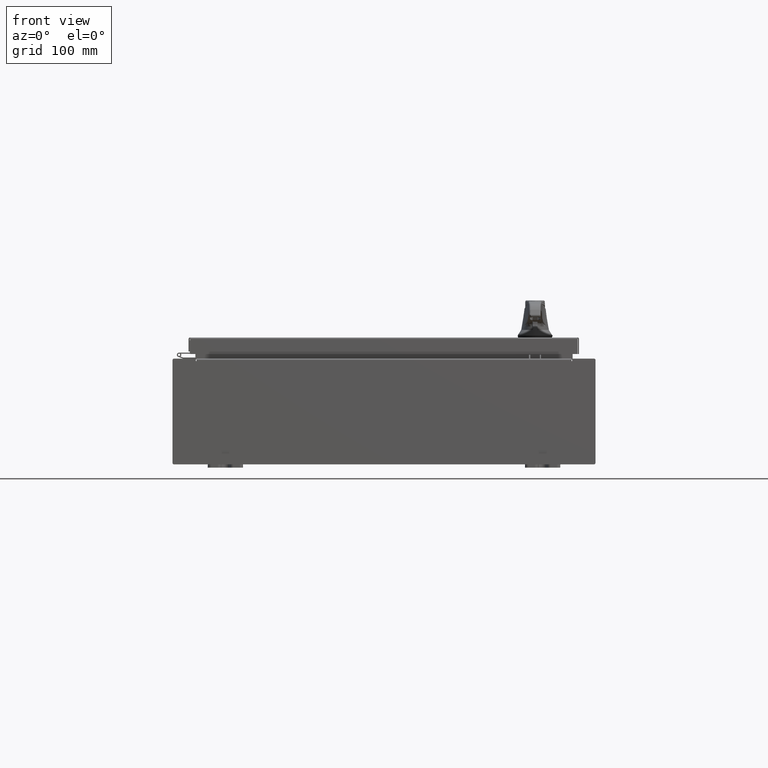
[diagram: clean part render]
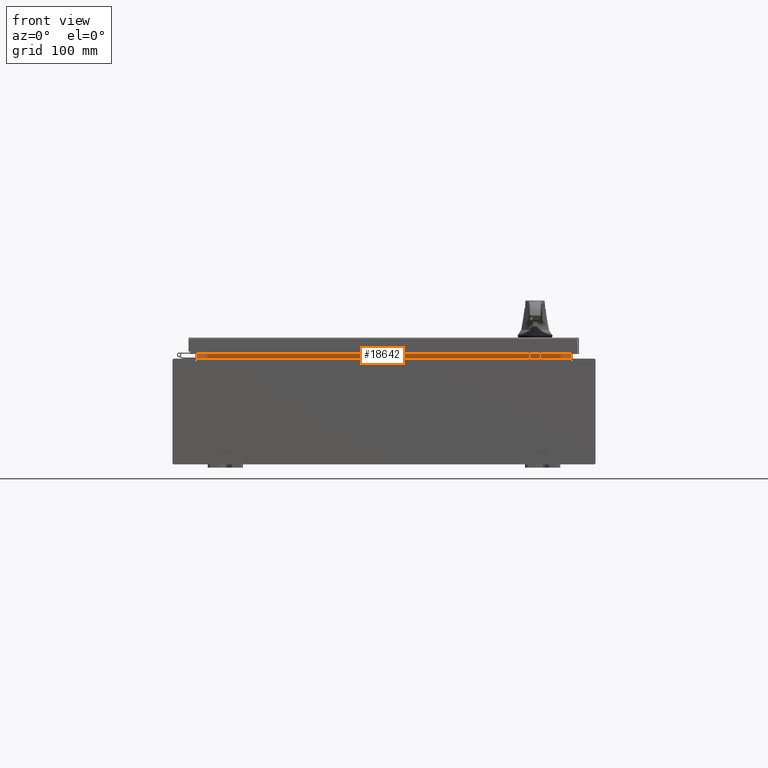
[diagram: same view with one face highlighted and labeled with its STEP entity id]
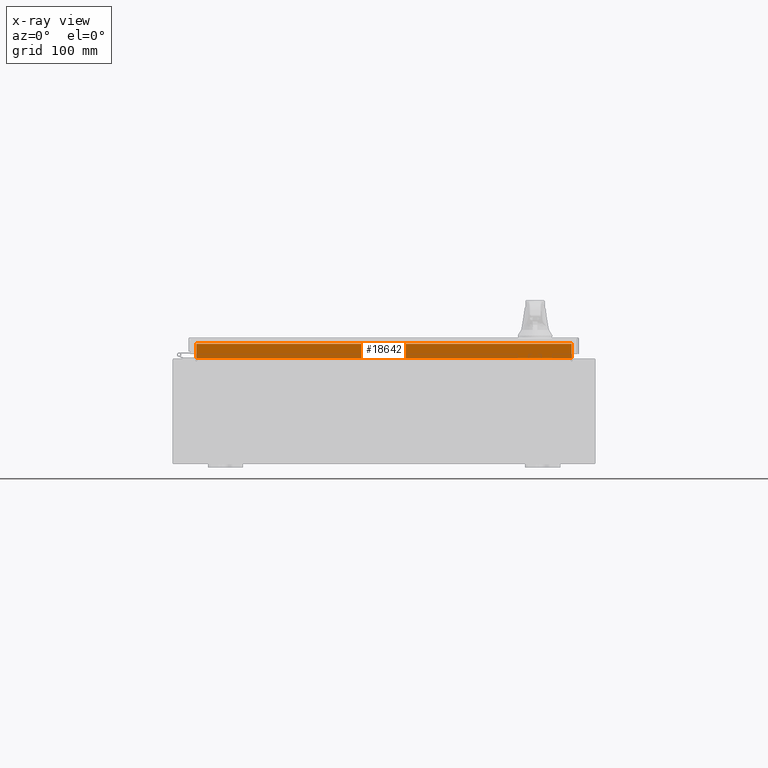
[diagram: x-ray of the same camera — body ghosted, the highlighted face saturated]
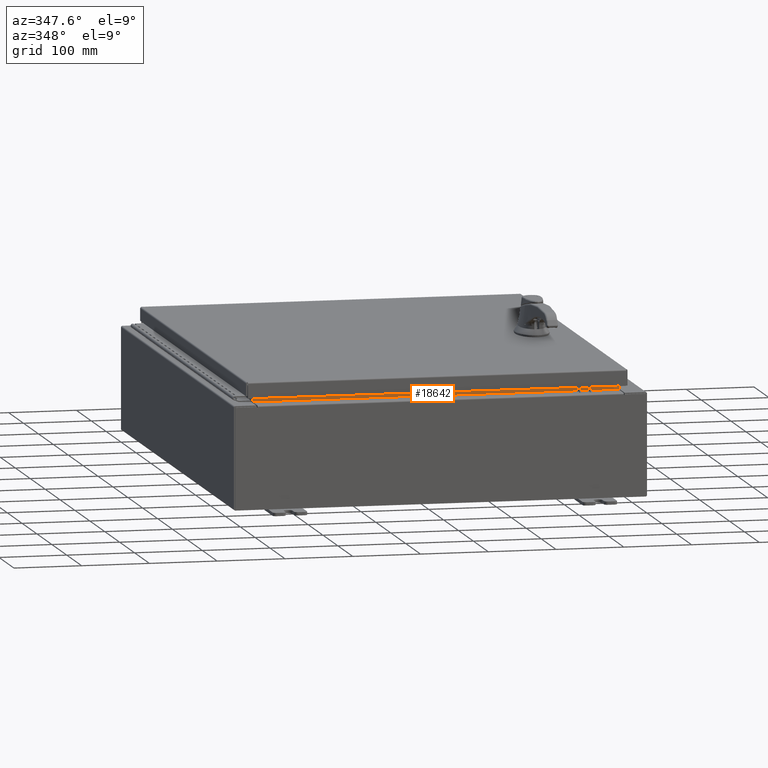
[diagram: same view with one face highlighted and labeled with its STEP entity id]
A machine part, front view. The second image highlights one B-rep face of the part: STEP entity #18642.
The next image is the same camera in x-ray: the body ghosted, the highlighted face saturated — about 0% of this face is hidden behind the body in this view.
A second angle (auxiliary view) of the same face is appended — the face is thin or edge-on in the first view.
In plain terms, the highlighted planar face has unit normal (0, -1, 0).
Its self-contained STEP definition (entity closure, byte-faithful):
#699 = LINE ( 'NONE', #61698, #70941 ) ;
#8759 = AXIS2_PLACEMENT_3D ( 'NONE', #46256, #19009, #83166 ) ;
#9772 = CARTESIAN_POINT ( 'NONE',  ( 10.63720000000000200, -1.300299999999999800, 3.925300000000005300 ) ) ;
#10052 = EDGE_CURVE ( 'NONE', #66609, #46404, #75205, .T. ) ;
#18594 = CARTESIAN_POINT ( 'NONE',  ( -10.63720000000000200, -1.300300000000000200, 3.837600000000005000 ) ) ;
#18642 = ADVANCED_FACE ( 'NONE', ( #29815 ), #91903, .T. ) ;
#19009 = DIRECTION ( 'NONE',  ( 0.0000000000000000000, 1.000000000000000000, 0.0000000000000000000 ) ) ;
#29815 = FACE_OUTER_BOUND ( 'NONE', #43357, .T. ) ;
#31756 = LINE ( 'NONE', #9772, #80496 ) ;
#33378 = CARTESIAN_POINT ( 'NONE',  ( 10.63720000000000200, -1.300300000000000200, 3.837600000000005000 ) ) ;
#38131 = ORIENTED_EDGE ( 'NONE', *, *, #10052, .F. ) ;
#42565 = LINE ( 'NONE', #86923, #88416 ) ;
#43357 = EDGE_LOOP ( 'NONE', ( #59072, #38131, #111055, #52896 ) ) ;
#46256 = CARTESIAN_POINT ( 'NONE',  ( 0.0000000000000000000, -1.300299999999999800, 0.0000000000000000000 ) ) ;
#46404 = VERTEX_POINT ( 'NONE', #18594 ) ;
#50842 = VECTOR ( 'NONE', #77922, 39.37007874015748100 ) ;
#51475 = EDGE_CURVE ( 'NONE', #46404, #103455, #42565, .T. ) ;
#52896 = ORIENTED_EDGE ( 'NONE', *, *, #69899, .F. ) ;
#55410 = DIRECTION ( 'NONE',  ( -0.0000000000000000000, -0.0000000000000000000, 1.000000000000000000 ) ) ;
#59072 = ORIENTED_EDGE ( 'NONE', *, *, #51475, .F. ) ;
#61698 = CARTESIAN_POINT ( 'NONE',  ( -10.63720000000000200, -1.300299999999999800, 3.013000000000005200 ) ) ;
#62620 = CARTESIAN_POINT ( 'NONE',  ( -10.63720000000000400, -1.300299999999999800, 3.013000000000004800 ) ) ;
#66609 = VERTEX_POINT ( 'NONE', #103921 ) ;
#69899 = EDGE_CURVE ( 'NONE', #103455, #105940, #699, .T. ) ;
#70919 = DIRECTION ( 'NONE',  ( 1.000000000000000000, 0.0000000000000000000, -5.136404305013091600E-017 ) ) ;
#70941 = VECTOR ( 'NONE', #70919, 39.37007874015748100 ) ;
#75205 = LINE ( 'NONE', #33378, #50842 ) ;
#77922 = DIRECTION ( 'NONE',  ( -1.000000000000000000, -0.0000000000000000000, -0.0000000000000000000 ) ) ;
#80496 = VECTOR ( 'NONE', #55410, 39.37007874015748100 ) ;
#81412 = CARTESIAN_POINT ( 'NONE',  ( 10.63720000000000400, -1.300299999999999800, 3.013000000000004800 ) ) ;
#83166 = DIRECTION ( 'NONE',  ( 0.0000000000000000000, -0.0000000000000000000, 1.000000000000000000 ) ) ;
#86923 = CARTESIAN_POINT ( 'NONE',  ( -10.63720000000000200, -1.300299999999999800, 3.000000000000005300 ) ) ;
#88416 = VECTOR ( 'NONE', #113570, 39.37007874015748100 ) ;
#91903 = PLANE ( 'NONE',  #8759 ) ;
#103455 = VERTEX_POINT ( 'NONE', #62620 ) ;
#103921 = CARTESIAN_POINT ( 'NONE',  ( 10.63720000000000200, -1.300299999999999800, 3.837600000000005000 ) ) ;
#105940 = VERTEX_POINT ( 'NONE', #81412 ) ;
#111055 = ORIENTED_EDGE ( 'NONE', *, *, #114255, .F. ) ;
#113570 = DIRECTION ( 'NONE',  ( -0.0000000000000000000, -0.0000000000000000000, -1.000000000000000000 ) ) ;
#114255 = EDGE_CURVE ( 'NONE', #105940, #66609, #31756, .T. ) ;